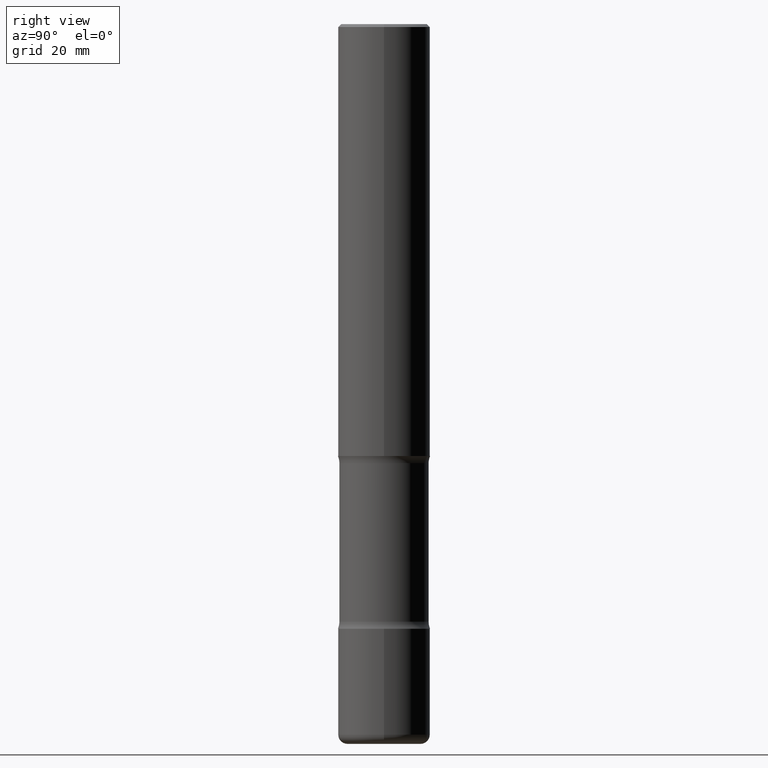
[diagram: clean part render]
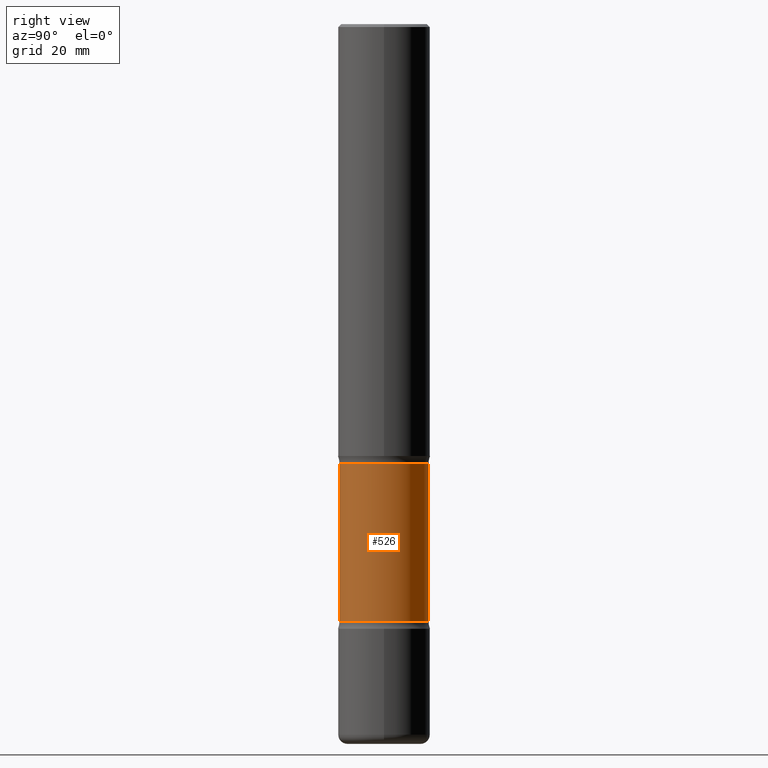
[diagram: same view with one face highlighted and labeled with its STEP entity id]
A machine part, right view. The second image highlights one B-rep face of the part: STEP entity #526.
In plain terms, the highlighted cylindrical surface (partial cylindrical patch) has radius 7.747 mm, axis along (0, -0, -1).
Its self-contained STEP definition (entity closure, byte-faithful):
#2 = AXIS2_PLACEMENT_3D ( 'NONE', #366, #327, #506 ) ;
#21 = CARTESIAN_POINT ( 'NONE',  ( 2.129803616694432752E-15, 0.3049999999999830069, -4.921299999999999564 ) ) ;
#58 = EDGE_LOOP ( 'NONE', ( #210, #322, #136, #219 ) ) ;
#61 = CARTESIAN_POINT ( 'NONE',  ( -2.126582866859130004E-15, -0.3050000000000142597, -4.085027743043725401 ) ) ;
#69 = VERTEX_POINT ( 'NONE', #512 ) ;
#96 = CARTESIAN_POINT ( 'NONE',  ( -2.092451889320195532E-15, -0.3050000000000170908, -4.921299999999997787 ) ) ;
#100 = CARTESIAN_POINT ( 'NONE',  ( 2.129803616694410664E-15, 0.3049999999999857270, -4.085027743043728066 ) ) ;
#131 = CARTESIAN_POINT ( 'NONE',  ( 1.213091465776199422E-28, -1.704510808787969270E-14, -4.921299999999998676 ) ) ;
#136 = ORIENTED_EDGE ( 'NONE', *, *, #432, .F. ) ;
#140 = LINE ( 'NONE', #96, #328 ) ;
#153 = VERTEX_POINT ( 'NONE', #172 ) ;
#163 = DIRECTION ( 'NONE',  ( 6.982962677686265133E-15, 1.000000000000000000, -3.582751467100672517E-15 ) ) ;
#172 = CARTESIAN_POINT ( 'NONE',  ( -2.126582866859160770E-15, -0.3050000000000108180, -3.001672256956272378 ) ) ;
#173 = EDGE_CURVE ( 'NONE', #153, #455, #140, .T. ) ;
#179 = CARTESIAN_POINT ( 'NONE',  ( 9.983847599202101310E-29, -1.427133364927305841E-14, -4.085027743043726289 ) ) ;
#184 = CIRCLE ( 'NONE', #2, 0.3050000000000001044 ) ;
#202 = CYLINDRICAL_SURFACE ( 'NONE', #218, 0.3050000000000000488 ) ;
#210 = ORIENTED_EDGE ( 'NONE', *, *, #213, .T. ) ;
#213 = EDGE_CURVE ( 'NONE', #69, #153, #184, .T. ) ;
#218 = AXIS2_PLACEMENT_3D ( 'NONE', #131, #254, #163 ) ;
#219 = ORIENTED_EDGE ( 'NONE', *, *, #454, .F. ) ;
#254 = DIRECTION ( 'NONE',  ( 2.567425907890858451E-29, -3.316831827833398617E-15, -1.000000000000000000 ) ) ;
#312 = DIRECTION ( 'NONE',  ( 2.567425907890858451E-29, -3.316831827833398617E-15, -1.000000000000000000 ) ) ;
#322 = ORIENTED_EDGE ( 'NONE', *, *, #173, .T. ) ;
#326 = DIRECTION ( 'NONE',  ( 2.567425907890858451E-29, -3.316831827833398617E-15, -1.000000000000000000 ) ) ;
#327 = DIRECTION ( 'NONE',  ( 2.567425907890858451E-29, -3.316831827833398617E-15, -1.000000000000000000 ) ) ;
#328 = VECTOR ( 'NONE', #312, 39.37007874015748143 ) ;
#342 = FACE_OUTER_BOUND ( 'NONE', #58, .T. ) ;
#346 = VECTOR ( 'NONE', #326, 39.37007874015748143 ) ;
#357 = DIRECTION ( 'NONE',  ( 6.982962677686266711E-15, 1.000000000000000000, -3.582751467100673306E-15 ) ) ;
#361 = LINE ( 'NONE', #21, #346 ) ;
#366 = CARTESIAN_POINT ( 'NONE',  ( 7.202412656765479231E-29, -1.067802569216027239E-14, -3.001672256956273710 ) ) ;
#373 = DIRECTION ( 'NONE',  ( 2.567425907890858451E-29, -3.316831827833398617E-15, -1.000000000000000000 ) ) ;
#403 = AXIS2_PLACEMENT_3D ( 'NONE', #179, #373, #357 ) ;
#424 = VERTEX_POINT ( 'NONE', #100 ) ;
#432 = EDGE_CURVE ( 'NONE', #424, #455, #494, .T. ) ;
#454 = EDGE_CURVE ( 'NONE', #69, #424, #361, .T. ) ;
#455 = VERTEX_POINT ( 'NONE', #61 ) ;
#494 = CIRCLE ( 'NONE', #403, 0.3049999999999999933 ) ;
#506 = DIRECTION ( 'NONE',  ( 6.982962677686265133E-15, 1.000000000000000000, -3.582751467100671728E-15 ) ) ;
#512 = CARTESIAN_POINT ( 'NONE',  ( 2.129803616694383843E-15, 0.3049999999999893907, -3.001672256956274598 ) ) ;
#526 = ADVANCED_FACE ( 'NONE', ( #342 ), #202, .T. ) ;